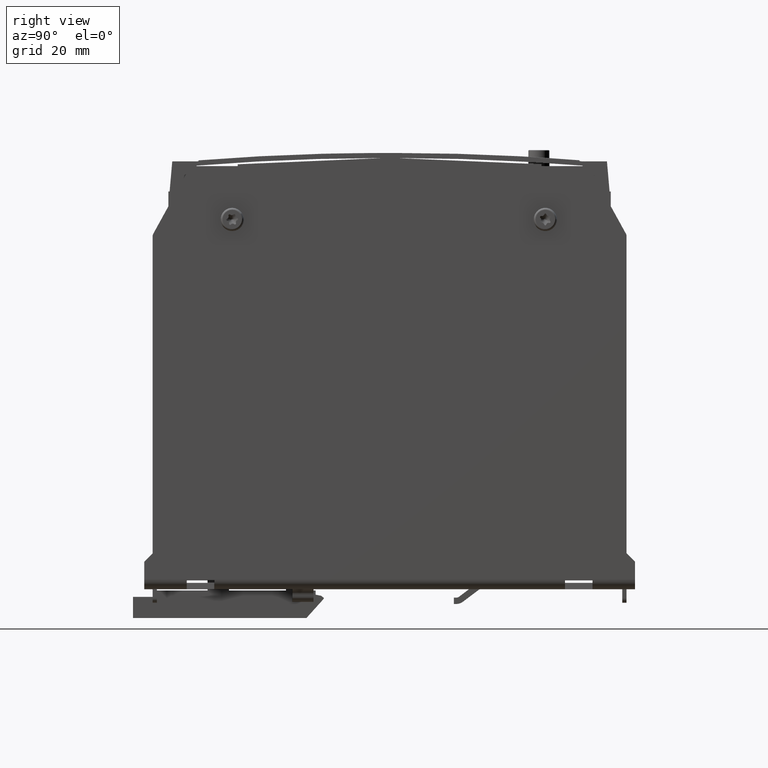
[diagram: clean part render]
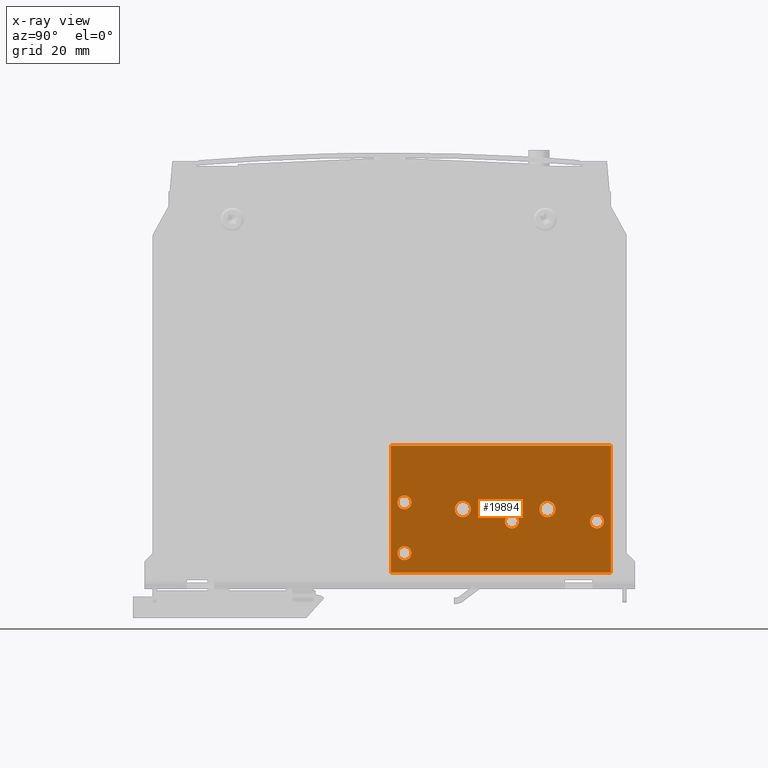
[diagram: x-ray — body ghosted, one internal face saturated and labeled with its STEP entity id]
A machine part, right view, then the same camera in x-ray: the body is ghosted and one INTERNAL B-rep face — a face not visible from any outside direction — is saturated and labeled: STEP entity #19894.
In plain terms, the highlighted planar face has unit normal (1, 0, 0).
Its self-contained STEP definition (entity closure, byte-faithful):
#19785=CARTESIAN_POINT('',(-0.787401574803145,0.137795275590563,0.399606299212604));
#19786=VERTEX_POINT('',#19785);
#19787=CARTESIAN_POINT('',(-0.787401574803145,0.137795275590563,0.334645669291345));
#19788=DIRECTION('',(1.0,0.0,0.0));
#19789=DIRECTION('',(0.0,0.0,-1.0));
#19790=AXIS2_PLACEMENT_3D('',#19787,#19788,#19789);
#19791=CIRCLE('',#19790,0.06496062992126);
#19792=EDGE_CURVE('',#19786,#19786,#19791,.T.);
#19797=CARTESIAN_POINT('',(-0.787401574803145,1.035433070866154,0.744094488188982));
#19798=DIRECTION('',(1.0,0.0,0.0));
#19799=DIRECTION('',(0.0,0.0,1.0));
#19800=AXIS2_PLACEMENT_3D('',#19797,#19798,#19799);
#19801=PLANE('',#19800);
#19802=CARTESIAN_POINT('',(-0.787401574803145,2.059055118110249,0.15354330708662));
#19803=VERTEX_POINT('',#19802);
#19804=CARTESIAN_POINT('',(-0.787401574803145,0.011811023622059,0.15354330708662));
#19805=VERTEX_POINT('',#19804);
#19806=CARTESIAN_POINT('',(-0.787401574803145,2.059055118110249,0.15354330708662));
#19807=DIRECTION('',(0.0,-1.0,0.0));
#19808=VECTOR('',#19807,2.047244094488189);
#19809=LINE('',#19806,#19808);
#19810=EDGE_CURVE('',#19803,#19805,#19809,.T.);
#19811=ORIENTED_EDGE('',*,*,#19810,.F.);
#19812=CARTESIAN_POINT('',(-0.787401574803145,2.059055118110249,1.334645669291345));
#19813=VERTEX_POINT('',#19812);
#19814=CARTESIAN_POINT('',(-0.787401574803145,2.059055118110249,1.334645669291345));
#19815=DIRECTION('',(0.0,0.0,-1.0));
#19816=VECTOR('',#19815,1.181102362204725);
#19817=LINE('',#19814,#19816);
#19818=EDGE_CURVE('',#19813,#19803,#19817,.T.);
#19819=ORIENTED_EDGE('',*,*,#19818,.F.);
#19820=CARTESIAN_POINT('',(-0.787401574803145,0.011811023622059,1.334645669291345));
#19821=VERTEX_POINT('',#19820);
#19822=CARTESIAN_POINT('',(-0.787401574803145,0.011811023622059,1.334645669291345));
#19823=DIRECTION('',(0.0,1.0,0.0));
#19824=VECTOR('',#19823,2.047244094488189);
#19825=LINE('',#19822,#19824);
#19826=EDGE_CURVE('',#19821,#19813,#19825,.T.);
#19827=ORIENTED_EDGE('',*,*,#19826,.F.);
#19828=CARTESIAN_POINT('',(-0.787401574803145,0.011811023622059,0.15354330708662));
#19829=DIRECTION('',(0.0,0.0,1.0));
#19830=VECTOR('',#19829,1.181102362204725);
#19831=LINE('',#19828,#19830);
#19832=EDGE_CURVE('',#19805,#19821,#19831,.T.);
#19833=ORIENTED_EDGE('',*,*,#19832,.F.);
#19834=EDGE_LOOP('',(#19811,#19819,#19827,#19833));
#19835=FACE_OUTER_BOUND('',#19834,.T.);
#19836=CARTESIAN_POINT('',(-0.787401574803145,0.137795275590563,0.872047244094494));
#19837=VERTEX_POINT('',#19836);
#19838=CARTESIAN_POINT('',(-0.787401574803145,0.137795275590563,0.807086614173234));
#19839=DIRECTION('',(1.0,0.0,0.0));
#19840=DIRECTION('',(0.0,0.0,-1.0));
#19841=AXIS2_PLACEMENT_3D('',#19838,#19839,#19840);
#19842=CIRCLE('',#19841,0.06496062992126);
#19843=EDGE_CURVE('',#19837,#19837,#19842,.T.);
#19844=ORIENTED_EDGE('',*,*,#19843,.F.);
#19845=EDGE_LOOP('',(#19844));
#19846=FACE_BOUND('',#19845,.T.);
#19847=CARTESIAN_POINT('',(-0.787401574803145,1.468503937007886,0.818897637795282));
#19848=VERTEX_POINT('',#19847);
#19849=CARTESIAN_POINT('',(-0.787401574803145,1.468503937007886,0.744094488188982));
#19850=DIRECTION('',(1.0,0.0,0.0));
#19851=DIRECTION('',(0.0,0.0,-1.0));
#19852=AXIS2_PLACEMENT_3D('',#19849,#19850,#19851);
#19853=CIRCLE('',#19852,0.074803149606299);
#19854=EDGE_CURVE('',#19848,#19848,#19853,.T.);
#19855=ORIENTED_EDGE('',*,*,#19854,.F.);
#19856=EDGE_LOOP('',(#19855));
#19857=FACE_BOUND('',#19856,.T.);
#19858=CARTESIAN_POINT('',(-0.787401574803145,1.929133858267729,0.694881889763786));
#19859=VERTEX_POINT('',#19858);
#19860=CARTESIAN_POINT('',(-0.787401574803145,1.929133858267729,0.629921259842526));
#19861=DIRECTION('',(1.0,0.0,0.0));
#19862=DIRECTION('',(0.0,0.0,-1.0));
#19863=AXIS2_PLACEMENT_3D('',#19860,#19861,#19862);
#19864=CIRCLE('',#19863,0.06496062992126);
#19865=EDGE_CURVE('',#19859,#19859,#19864,.T.);
#19866=ORIENTED_EDGE('',*,*,#19865,.F.);
#19867=EDGE_LOOP('',(#19866));
#19868=FACE_BOUND('',#19867,.T.);
#19869=CARTESIAN_POINT('',(-0.787401574803145,1.137795275590563,0.694881889763786));
#19870=VERTEX_POINT('',#19869);
#19871=CARTESIAN_POINT('',(-0.787401574803145,1.137795275590563,0.629921259842526));
#19872=DIRECTION('',(1.0,0.0,0.0));
#19873=DIRECTION('',(0.0,0.0,-1.0));
#19874=AXIS2_PLACEMENT_3D('',#19871,#19872,#19873);
#19875=CIRCLE('',#19874,0.06496062992126);
#19876=EDGE_CURVE('',#19870,#19870,#19875,.T.);
#19877=ORIENTED_EDGE('',*,*,#19876,.F.);
#19878=EDGE_LOOP('',(#19877));
#19879=FACE_BOUND('',#19878,.T.);
#19880=CARTESIAN_POINT('',(-0.787401574803145,0.681102362204737,0.818897637795282));
#19881=VERTEX_POINT('',#19880);
#19882=CARTESIAN_POINT('',(-0.787401574803145,0.681102362204737,0.744094488188982));
#19883=DIRECTION('',(1.0,0.0,0.0));
#19884=DIRECTION('',(0.0,0.0,-1.0));
#19885=AXIS2_PLACEMENT_3D('',#19882,#19883,#19884);
#19886=CIRCLE('',#19885,0.074803149606299);
#19887=EDGE_CURVE('',#19881,#19881,#19886,.T.);
#19888=ORIENTED_EDGE('',*,*,#19887,.F.);
#19889=EDGE_LOOP('',(#19888));
#19890=FACE_BOUND('',#19889,.T.);
#19891=ORIENTED_EDGE('',*,*,#19792,.F.);
#19892=EDGE_LOOP('',(#19891));
#19893=FACE_BOUND('',#19892,.T.);
#19894=ADVANCED_FACE('',(#19835,#19846,#19857,#19868,#19879,#19890,#19893),#19801,.T.);